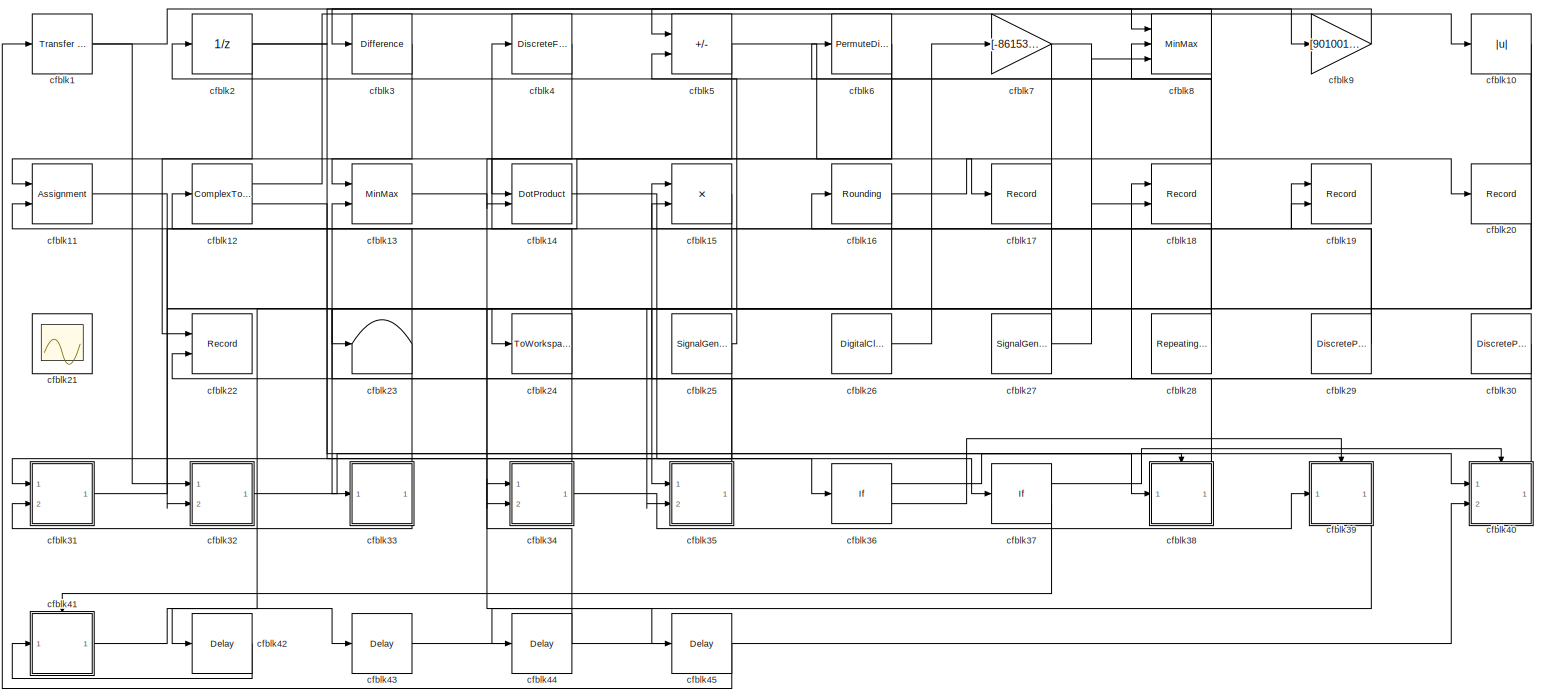
[diagram: root canvas - part 1/1, most of the canvas]
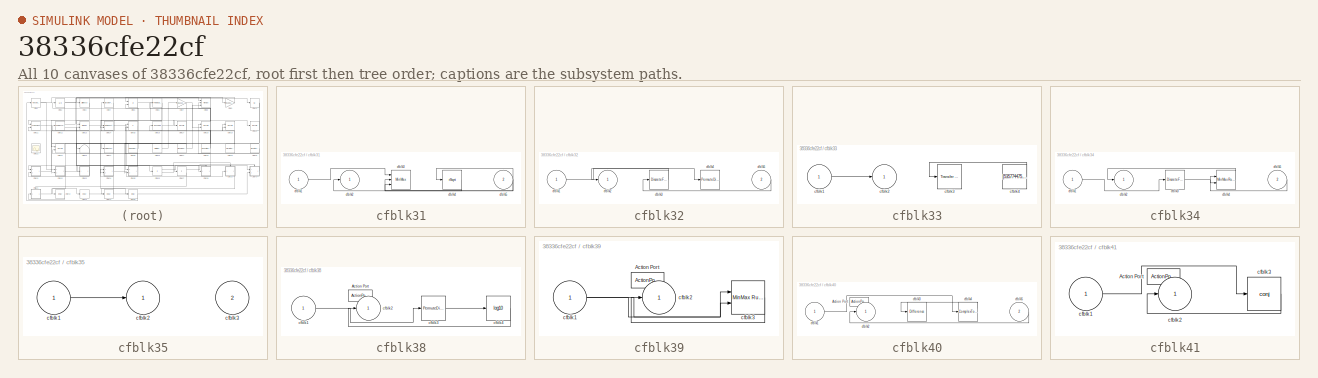
[diagram: thumbnail index - all 10 canvases of the model, root first then tree order]
MODEL slx_38336cfe22cf
KIND model
CONFIG AbsTol = auto
CONFIG EnableMultiTasking = off
CONFIG FixedStep = auto
CONFIG MaxStep = auto
CONFIG MinStep = auto
CONFIG RelTol = 1e-3
CONFIG SampleTimeConstraint = Unconstrained
CONFIG SolverName = VariableStepAuto
CONFIG StartTime = 0.0
CONFIG StopTime = 10.0
BLOCK [Reference] cfblk1  REF=simulink/Discrete/Transfer Fcn
Lead or Lag
  Ports = [1, 1]
  SourceBlock = simulink/Discrete/Transfer Fcn\nLead or Lag
  SourceProductBaseCode = SL
  SourceType = Lead or Lag Compensator
BLOCK [Abs] cfblk10
  SaturateOnIntegerOverflow = off
BLOCK [Assignment] cfblk11
  DiagnosticForDimensions = Warning
  IndexOptions = Index vector (dialog)
  Indices = 1
  OutputSizes = 1
  Ports = [2, 1]
BLOCK [ComplexToMagnitudeAngle] cfblk12
  Ports = [1, 2]
BLOCK [MinMax] cfblk13
  Function = max
  Inputs = 2
  Ports = [2, 1]
BLOCK [DotProduct] cfblk14
  OutDataTypeStr = Inherit: Inherit via internal rule
BLOCK [Product] cfblk15
  Inputs = **
  Ports = [2, 1]
BLOCK [Rounding] cfblk16
BLOCK [Record] cfblk17
  FileSettingsInternal = {"entries":[{"content":{"excelSettings":{"content":{},"type":"Streamout.ExcelSettings"}},"type":"Streamout.FileSettingStorage","uuid":"4b455be7-6192-4367-962d-3753fbca5225"}],"packageUris":["http://schema.mathworks.com/mf0/streamout_blocks/R2020a"],"version":"1.0"}
  Ports = [1]
  SignalsInternal = {"entries":[{"content":{"signals":[{"content":{"blockPath":["sampleModel124/cfblk17"],"channel":[],"dimensions":[1],"domain":"sampleModel124/cfblk17","lineColor":"#ff6929","plots":[1],"port":1,"sid":[""],"signalID":4331,"signalName":"cfblk5"},"type":"RecordBlkView.Signal","uuid":"d4c4a8db-8163-4ec6-83a6-40b1eebb3f8b"}]},"type":"RecordBlkView.InputSignals","uuid":"e1b93c3d-c5e7-46c7-8ecf-dc3223401c...<+96ch>
  VisualizationBindings = {"sparklinesplugin":{"info":[{"bindingParametersList":[],"subplotID":1}]}}
BLOCK [Record] cfblk18
  CompatibilityTag = XY
  FileSettingsInternal = {"entries":[{"content":{"excelSettings":{"content":{},"type":"Streamout.ExcelSettings"}},"type":"Streamout.FileSettingStorage","uuid":"5ddf4468-bc94-43dd-8064-347963570ec6"}],"packageUris":["http://schema.mathworks.com/mf0/streamout_blocks/R2020a"],"version":"1.0"}
  Layout = [1 1]
  Ports = [2]
  SignalsInternal = {"entries":[{"content":{"signals":[{"content":{"blockPath":["sampleModel124/cfblk18"],"channel":[],"dimensions":[1,1],"domain":"sampleModel124/cfblk18","lineColor":"#a2142f","plots":[1],"port":1,"sid":[""],"signalID":4335,"signalName":"cfblk38"},"type":"RecordBlkView.Signal","uuid":"6f366cca-8914-4087-904e-589c9d18393c"},{"content":{"blockPath":["sampleModel124/cfblk18"],"channel":[],"dimensions":...<+384ch>
  VisualizationBindings = {"xyplotplugin":{"info":[{"series":[{"bindingParametersList":[{"parameter":"X-Axis","signalID":4335,"signalName":"cfblk38"},{"parameter":"Y-Axis","signalID":4339,"signalName":"cfblk7"}],"seriesID":22074}],"subplotID":1}]}}
BLOCK [Record] cfblk19
  CompatibilityTag = XY
  FileSettingsInternal = {"entries":[{"content":{"excelSettings":{"content":{},"type":"Streamout.ExcelSettings"}},"type":"Streamout.FileSettingStorage","uuid":"7b857b01-50db-48e1-8f6f-10bc7bf9b4dc"}],"packageUris":["http://schema.mathworks.com/mf0/streamout_blocks/R2020a"],"version":"1.0"}
  Layout = [1 1]
  Ports = [2]
  SignalsInternal = {"entries":[{"content":{"signals":[{"content":{"blockPath":["sampleModel124/cfblk19"],"channel":[],"dimensions":[1],"domain":"sampleModel124/cfblk19","lineColor":"#a2142f","plots":[1],"port":1,"sid":[""],"signalID":4343,"signalName":"cfblk31"},"type":"RecordBlkView.Signal","uuid":"19b1038e-ab8c-450c-ab49-0e94919ec1bc"},{"content":{"blockPath":["sampleModel124/cfblk19"],"channel":[],"dimensions":[1...<+383ch>
  VisualizationBindings = {"xyplotplugin":{"info":[{"series":[{"bindingParametersList":[{"parameter":"X-Axis","signalID":4343,"signalName":"cfblk31"},{"parameter":"Y-Axis","signalID":4347,"signalName":"cfblk29"}],"seriesID":56521}],"subplotID":1}]}}
BLOCK [UnitDelay] cfblk2
  HasFrameUpgradeWarning = on
BLOCK [Record] cfblk20
  FileSettingsInternal = {"entries":[{"content":{"excelSettings":{"content":{},"type":"Streamout.ExcelSettings"}},"type":"Streamout.FileSettingStorage","uuid":"23d67973-0759-4e4c-82b0-1d8abc3ae8fa"}],"packageUris":["http://schema.mathworks.com/mf0/streamout_blocks/R2020a"],"version":"1.0"}
  Ports = [1]
  SignalsInternal = {"entries":[{"content":{"signals":[{"content":{"blockPath":["sampleModel124/cfblk20"],"channel":[],"dimensions":[1],"domain":"sampleModel124/cfblk20","lineColor":"#22b573","plots":[1],"port":1,"sid":[""],"signalID":4351,"signalName":"cfblk16"},"type":"RecordBlkView.Signal","uuid":"15fb3d42-850b-41a6-83e3-28d36fd3b540"}]},"type":"RecordBlkView.InputSignals","uuid":"34d700f9-c39a-480b-ad25-4cf78fa89...<+97ch>
  VisualizationBindings = {"sparklinesplugin":{"info":[{"bindingParametersList":[],"subplotID":1}]}}
BLOCK [Scope] cfblk21
  Floating = on
  NumInputPorts = 1
  Ports = []
BLOCK [Record] cfblk22
  CompatibilityTag = XY
  FileSettingsInternal = {"entries":[{"content":{"excelSettings":{"content":{},"type":"Streamout.ExcelSettings"}},"type":"Streamout.FileSettingStorage","uuid":"737a1502-8c6c-4a6d-8c82-8cbccc807f05"}],"packageUris":["http://schema.mathworks.com/mf0/streamout_blocks/R2020a"],"version":"1.0"}
  Layout = [1 1]
  Ports = [2]
  SignalsInternal = {"entries":[{"content":{"signals":[{"content":{"blockPath":["sampleModel124/cfblk22"],"channel":[],"dimensions":[1],"domain":"sampleModel124/cfblk22","lineColor":"#a2142f","plots":[1],"port":1,"sid":[""],"signalID":4355,"signalName":"cfblk2"},"type":"RecordBlkView.Signal","uuid":"abac603e-1be2-48d2-8669-8db6971efd42"},{"content":{"blockPath":["sampleModel124/cfblk22"],"channel":[],"dimensions":[1]...<+382ch>
  VisualizationBindings = {"xyplotplugin":{"info":[{"series":[{"bindingParametersList":[{"parameter":"X-Axis","signalID":4355,"signalName":"cfblk2"},{"parameter":"Y-Axis","signalID":4359,"signalName":"cfblk30"}],"seriesID":39126}],"subplotID":1}]}}
BLOCK [Terminator] cfblk23
BLOCK [ToWorkspace] cfblk24
  FixptAsFi = on
  MaxDataPoints = inf
  Ports = [1]
  SampleTime = -1
  SaveFormat = Timeseries
  VariableName = iatyzvc
BLOCK [SignalGenerator] cfblk25
  Amplitude = [-283486214.818912]
  Ports = [0, 1]
  Units = rad/sec
BLOCK [DigitalClock] cfblk26
BLOCK [SignalGenerator] cfblk27
  Amplitude = [346027948.126219]
  Ports = [0, 1]
  Units = rad/sec
BLOCK [Reference] cfblk28  REF=simulink/Sources/Repeating
Sequence
  Ports = [0, 1]
  SourceBlock = simulink/Sources/Repeating\nSequence
  SourceProductBaseCode = SL
  SourceType = Repeating table
BLOCK [DiscretePulseGenerator] cfblk29
  Amplitude = [374716888.884427]
  Period = [86223942.976329]
  PhaseDelay = [2.000000]
  Ports = [0, 1]
  PulseType = Time based
  PulseWidth = 5
BLOCK [Reference] cfblk3  REF=simulink/Discrete/Difference
  Ports = [1, 1]
  SourceBlock = simulink/Discrete/Difference
  SourceProductBaseCode = SL
  SourceType = Difference
BLOCK [DiscretePulseGenerator] cfblk30
  Amplitude = [921270961.664990]
  Period = [2653904.390850]
  PhaseDelay = [1.000000]
  Ports = [0, 1]
  PulseType = Time based
  PulseWidth = 5
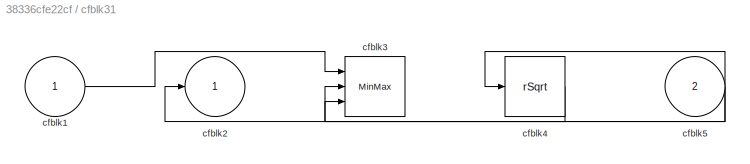
BLOCK [SubSystem] cfblk31
  Ports = [2, 1]
  RequestExecContextInheritance = off
BLOCK [Inport] cfblk31/cfblk1
BLOCK [Outport] cfblk31/cfblk2
BLOCK [MinMax] cfblk31/cfblk3
  Inputs = 3
  Ports = [3, 1]
BLOCK [Sqrt] cfblk31/cfblk4
  AlgorithmType = Newton-Raphson
  Operator = rSqrt
BLOCK [Inport] cfblk31/cfblk5
  Port = 2
BLOCK [SubSystem] cfblk32
  Ports = [2, 1]
  RequestExecContextInheritance = off
BLOCK [Inport] cfblk32/cfblk1
BLOCK [Outport] cfblk32/cfblk2
BLOCK [DiscreteFir] cfblk32/cfblk3
  InputPortMap = u0
  OutputPortMap = o0
  Ports = [1, 1]
  SampleTime = 1
BLOCK [PermuteDimensions] cfblk32/cfblk4
BLOCK [Inport] cfblk32/cfblk5
  Port = 2
BLOCK [SubSystem] cfblk33
  Ports = [1, 1]
  RequestExecContextInheritance = off
BLOCK [Inport] cfblk33/cfblk1
BLOCK [Outport] cfblk33/cfblk2
BLOCK [Reference] cfblk33/cfblk3  REF=simulink/Discrete/Transfer Fcn
Real Zero
  Ports = [1, 1]
  SourceBlock = simulink/Discrete/Transfer Fcn\nReal Zero
  SourceProductBaseCode = SL
  SourceType = Transfer Fcn Real Zero
BLOCK [Constant] cfblk33/cfblk4
  SampleTime = 1
  Value = [535774475.577919]
BLOCK [SubSystem] cfblk34
  Ports = [2, 1]
  RequestExecContextInheritance = off
BLOCK [Inport] cfblk34/cfblk1
BLOCK [Outport] cfblk34/cfblk2
BLOCK [DiscreteFir] cfblk34/cfblk3
  InputPortMap = u0
  OutputPortMap = o0
  Ports = [1, 1]
  SampleTime = 1
BLOCK [Reference] cfblk34/cfblk4  REF=simulink/Math
Operations/MinMax
Running
Resettable
  Ports = [2, 1]
  SourceBlock = simulink/Math\nOperations/MinMax\nRunning\nResettable
  SourceProductBaseCode = SL
  SourceType = MinMax Running Resettable
BLOCK [Inport] cfblk34/cfblk5
  Port = 2
BLOCK [SubSystem] cfblk35
  Ports = [2, 1]
  RequestExecContextInheritance = off
BLOCK [Inport] cfblk35/cfblk1
BLOCK [Outport] cfblk35/cfblk2
BLOCK [Inport] cfblk35/cfblk3
  Port = 2
BLOCK [If] cfblk36
  IfExpression = u1 >= 0
  Ports = [1, 2]
  SampleTime = 1
BLOCK [If] cfblk37
  IfExpression = u1 >= 0
  Ports = [1, 2]
  SampleTime = 1
BLOCK [SubSystem] cfblk38
  Ports = [1, 1, 0, 0, 0, 0, 0, 1]
  RequestExecContextInheritance = off
  TreatAsAtomicUnit = on
BLOCK [ActionPort] cfblk38/Action Port
  ActionPortLabel = if(u1 >= 0)
BLOCK [Inport] cfblk38/cfblk1
BLOCK [Outport] cfblk38/cfblk2
BLOCK [PermuteDimensions] cfblk38/cfblk3
BLOCK [Math] cfblk38/cfblk4
  Operator = log10
  Ports = [1, 1]
BLOCK [SubSystem] cfblk39
  Ports = [1, 1, 0, 0, 0, 0, 0, 1]
  RequestExecContextInheritance = off
  TreatAsAtomicUnit = on
BLOCK [ActionPort] cfblk39/Action Port
  ActionPortLabel = else
BLOCK [Inport] cfblk39/cfblk1
BLOCK [Outport] cfblk39/cfblk2
BLOCK [Reference] cfblk39/cfblk3  REF=simulink/Math
Operations/MinMax
Running
Resettable
  Ports = [2, 1]
  SourceBlock = simulink/Math\nOperations/MinMax\nRunning\nResettable
  SourceProductBaseCode = SL
  SourceType = MinMax Running Resettable
BLOCK [DiscreteFir] cfblk4
  InputPortMap = u0
  OutputPortMap = o0
  Ports = [1, 1]
  SampleTime = 1
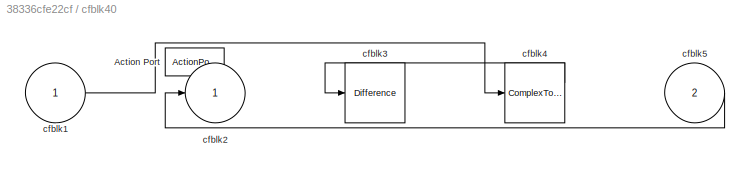
BLOCK [SubSystem] cfblk40
  Ports = [2, 1, 0, 0, 0, 0, 0, 1]
  RequestExecContextInheritance = off
  TreatAsAtomicUnit = on
BLOCK [ActionPort] cfblk40/Action Port
  ActionPortLabel = if(u1 >= 0)
BLOCK [Inport] cfblk40/cfblk1
BLOCK [Outport] cfblk40/cfblk2
BLOCK [Reference] cfblk40/cfblk3  REF=simulink/Discrete/Difference
  Ports = [1, 1]
  SourceBlock = simulink/Discrete/Difference
  SourceProductBaseCode = SL
  SourceType = Difference
BLOCK [ComplexToRealImag] cfblk40/cfblk4
  Ports = [1, 2]
BLOCK [Inport] cfblk40/cfblk5
  Port = 2
BLOCK [SubSystem] cfblk41
  Ports = [1, 1, 0, 0, 0, 0, 0, 1]
  RequestExecContextInheritance = off
  TreatAsAtomicUnit = on
BLOCK [ActionPort] cfblk41/Action Port
  ActionPortLabel = else
BLOCK [Inport] cfblk41/cfblk1
BLOCK [Outport] cfblk41/cfblk2
BLOCK [Math] cfblk41/cfblk3
  Operator = conj
  Ports = [1, 1]
BLOCK [Delay] cfblk42
  InputPortMap = u0
  Ports = [1, 1]
  SampleTime = 1
BLOCK [Delay] cfblk43
  InputPortMap = u0
  Ports = [1, 1]
  SampleTime = 1
BLOCK [Delay] cfblk44
  InputPortMap = u0
  Ports = [1, 1]
  SampleTime = 1
BLOCK [Delay] cfblk45
  InputPortMap = u0
  Ports = [1, 1]
  SampleTime = 1
BLOCK [Sum] cfblk5
  IconShape = rectangular
  Inputs = +-
  Ports = [2, 1]
BLOCK [PermuteDimensions] cfblk6
BLOCK [Gain] cfblk7
  Gain = [-861536770.375697]
BLOCK [MinMax] cfblk8
  Function = max
  Inputs = 3
  Ports = [3, 1]
BLOCK [Gain] cfblk9
  Gain = [90100158.697135]
NET cfblk10:1 -> cfblk32:2, cfblk35:2
LINE cfblk11:1 -> cfblk24:1
LINE cfblk12:1 -> cfblk10:1
LINE cfblk12:2 -> cfblk38:1
LINE cfblk13:1 -> cfblk45:1
LINE cfblk14:1 -> cfblk37:1
LINE cfblk15:1 -> cfblk42:1
NET cfblk16:1 -> cfblk20:1, cfblk35:1
NET cfblk1:1 -> cfblk32:1, cfblk8:1
NET cfblk25:1 -> cfblk31:1, cfblk5:2
LINE cfblk26:1 -> cfblk7:1
NET cfblk27:1 -> cfblk23:1, cfblk8:3
NET cfblk28:1 -> cfblk15:2, cfblk2:1, cfblk6:1, cfblk8:2
NET cfblk29:1 -> cfblk16:1, cfblk19:2
NET cfblk2:1 -> cfblk22:1, cfblk36:1, cfblk9:1
LINE cfblk30:1 -> cfblk22:2
LINE cfblk31/cfblk1:1 -> cfblk31/cfblk3:1
LINE cfblk31/cfblk4:1 -> cfblk31/cfblk2:1
NET cfblk31/cfblk5:1 -> cfblk31/cfblk3:2, cfblk31/cfblk3:3, cfblk31/cfblk4:1
LINE cfblk31:1 -> cfblk19:1
LINE cfblk32/cfblk1:1 -> cfblk32/cfblk4:1
LINE cfblk32/cfblk3:1 -> cfblk32/cfblk2:1
LINE cfblk32/cfblk5:1 -> cfblk32/cfblk3:1
LINE cfblk32:1 -> cfblk40:1
LINE cfblk33/cfblk1:1 -> cfblk33/cfblk2:1
LINE cfblk33/cfblk4:1 -> cfblk33/cfblk3:1
NET cfblk33:1 -> cfblk11:2, cfblk31:2
LINE cfblk34/cfblk1:1 -> cfblk34/cfblk3:1
LINE cfblk34/cfblk3:1 -> cfblk34/cfblk4:2
LINE cfblk34/cfblk4:1 -> cfblk34/cfblk2:1
LINE cfblk34/cfblk5:1 -> cfblk34/cfblk4:1
NET cfblk34:1 -> cfblk39:1, cfblk4:1
LINE cfblk35/cfblk1:1 -> cfblk35/cfblk2:1
LINE cfblk35:1 -> cfblk13:2
LINE cfblk36:1 -> cfblk38:ifaction
LINE cfblk36:2 -> cfblk39:ifaction
LINE cfblk37:1 -> cfblk40:ifaction
LINE cfblk37:2 -> cfblk41:ifaction
LINE cfblk38/cfblk1:1 -> cfblk38/cfblk3:1
LINE cfblk38/cfblk3:1 -> cfblk38/cfblk4:1
LINE cfblk38/cfblk4:1 -> cfblk38/cfblk2:1
LINE cfblk38:1 -> cfblk18:1
NET cfblk39/cfblk1:1 -> cfblk39/cfblk3:1, cfblk39/cfblk3:2
LINE cfblk39/cfblk3:1 -> cfblk39/cfblk2:1
LINE cfblk39:1 -> cfblk44:1
LINE cfblk3:1 -> cfblk11:1
LINE cfblk40/cfblk1:1 -> cfblk40/cfblk4:1
LINE cfblk40/cfblk4:1 -> cfblk40/cfblk3:1
LINE cfblk40/cfblk5:1 -> cfblk40/cfblk2:1
LINE cfblk40:1 -> cfblk15:1
LINE cfblk41/cfblk1:1 -> cfblk41/cfblk3:1
LINE cfblk41/cfblk3:1 -> cfblk41/cfblk2:1
LINE cfblk41:1 -> cfblk43:1
LINE cfblk42:1 -> cfblk41:1
LINE cfblk43:1 -> cfblk40:2
LINE cfblk44:1 -> cfblk34:1
LINE cfblk45:1 -> cfblk1:1
LINE cfblk4:1 -> cfblk13:1
NET cfblk5:1 -> cfblk14:2, cfblk17:1
NET cfblk6:1 -> cfblk12:1, cfblk14:1
NET cfblk7:1 -> cfblk18:2, cfblk33:1
NET cfblk8:1 -> cfblk34:2, cfblk3:1
LINE cfblk9:1 -> cfblk5:1
note: NET lines group one-source signal fan-out (src -> all destinations, sorted); 1:1 wires keep LINE
